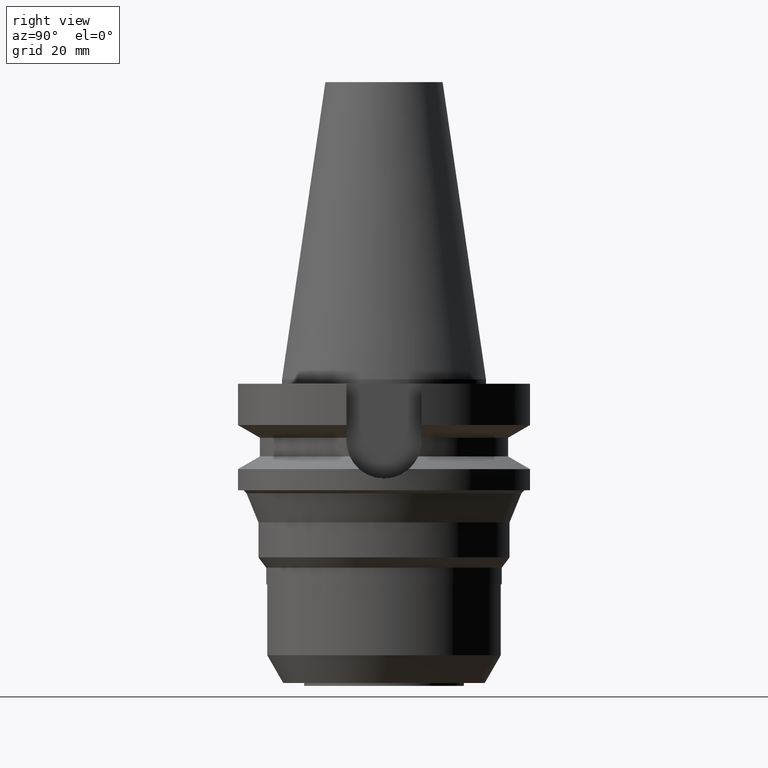
[diagram: clean part render]
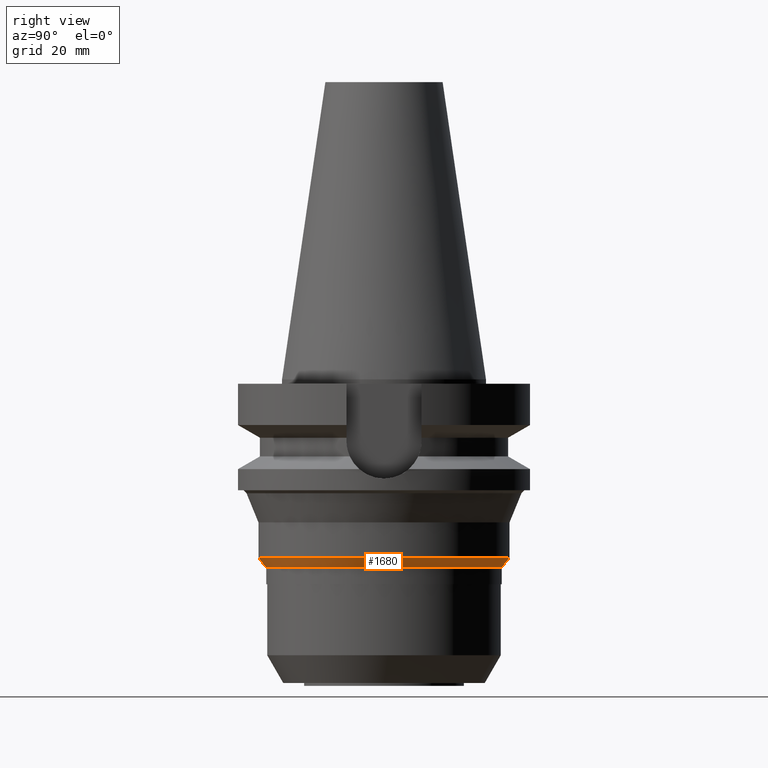
[diagram: same view with one face highlighted and labeled with its STEP entity id]
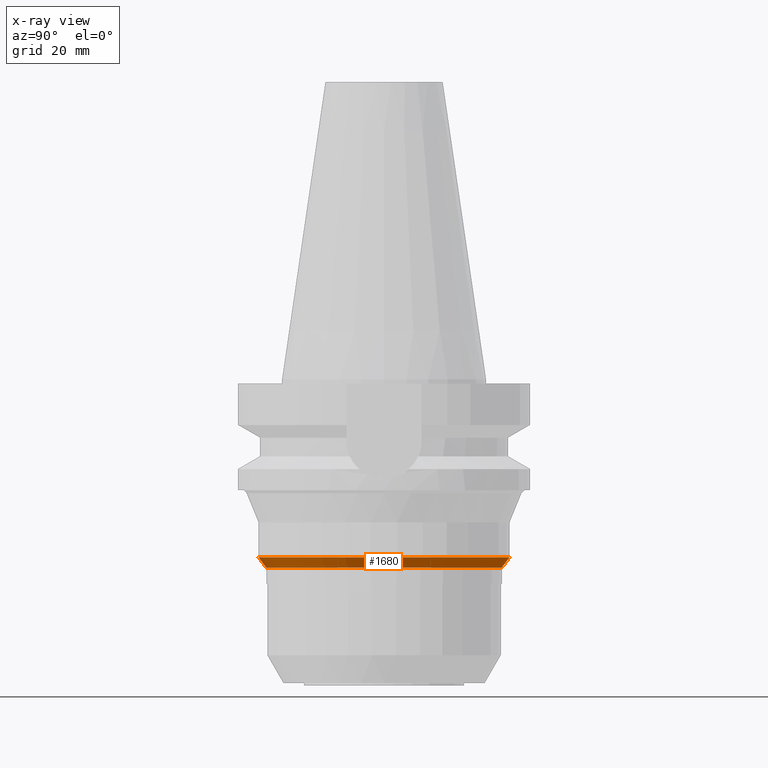
[diagram: x-ray of the same camera — body ghosted, the highlighted face saturated]
A machine part, right view. The second image highlights one B-rep face of the part: STEP entity #1680.
The next image is the same camera in x-ray: the body ghosted, the highlighted face saturated — about 0% of this face is hidden behind the body in this view.
In plain terms, the highlighted conical surface has half-angle 37 deg.
Its self-contained STEP definition (entity closure, byte-faithful):
#376=DIRECTION('',(0.E0,6.018150231523E-1,-7.986355100471E-1));
#377=VECTOR('',#376,4.403346373971E0);
#378=CARTESIAN_POINT('',(0.E0,-4.3E1,-6.1E1));
#379=LINE('',#378,#377);
#391=DIRECTION('',(0.E0,-6.018150231523E-1,-7.986355100471E-1));
#392=VECTOR('',#391,4.403346373971E0);
#393=CARTESIAN_POINT('',(0.E0,4.3E1,-6.1E1));
#394=LINE('',#393,#392);
#398=CARTESIAN_POINT('',(0.E0,0.E0,-6.451666877729E1));
#399=DIRECTION('',(0.E0,0.E0,-1.E0));
#400=DIRECTION('',(0.E0,1.E0,0.E0));
#401=AXIS2_PLACEMENT_3D('',#398,#399,#400);
#406=CARTESIAN_POINT('',(0.E0,0.E0,-6.1E1));
#407=DIRECTION('',(0.E0,0.E0,1.E0));
#408=DIRECTION('',(0.E0,-1.E0,0.E0));
#409=AXIS2_PLACEMENT_3D('',#406,#407,#408);
#1190=CARTESIAN_POINT('',(0.E0,4.035E1,-6.451666877729E1));
#1191=VERTEX_POINT('',#1190);
#1192=CARTESIAN_POINT('',(0.E0,-4.035E1,-6.451666877729E1));
#1193=VERTEX_POINT('',#1192);
#1194=CARTESIAN_POINT('',(0.E0,4.3E1,-6.1E1));
#1195=VERTEX_POINT('',#1194);
#1196=CARTESIAN_POINT('',(0.E0,-4.3E1,-6.1E1));
#1197=VERTEX_POINT('',#1196);
#1668=CARTESIAN_POINT('',(0.E0,0.E0,-6.275833438865E1));
#1669=DIRECTION('',(0.E0,0.E0,1.E0));
#1670=DIRECTION('',(0.E0,1.E0,0.E0));
#1671=AXIS2_PLACEMENT_3D('',#1668,#1669,#1670);
#1672=CONICAL_SURFACE('',#1671,4.1675E1,3.7E1);
#1673=ORIENTED_EDGE('',*,*,#1658,.T.);
#1674=ORIENTED_EDGE('',*,*,#1635,.T.);
#1675=ORIENTED_EDGE('',*,*,#1662,.F.);
#1677=ORIENTED_EDGE('',*,*,#1676,.T.);
#1678=EDGE_LOOP('',(#1673,#1674,#1675,#1677));
#1679=FACE_OUTER_BOUND('',#1678,.F.);
#402=CIRCLE('',#401,4.035E1);
#410=CIRCLE('',#409,4.3E1);
#1635=EDGE_CURVE('',#1191,#1193,#402,.T.);
#1658=EDGE_CURVE('',#1195,#1191,#394,.T.);
#1662=EDGE_CURVE('',#1197,#1193,#379,.T.);
#1676=EDGE_CURVE('',#1197,#1195,#410,.T.);
#1680=ADVANCED_FACE('',(#1679),#1672,.T.);